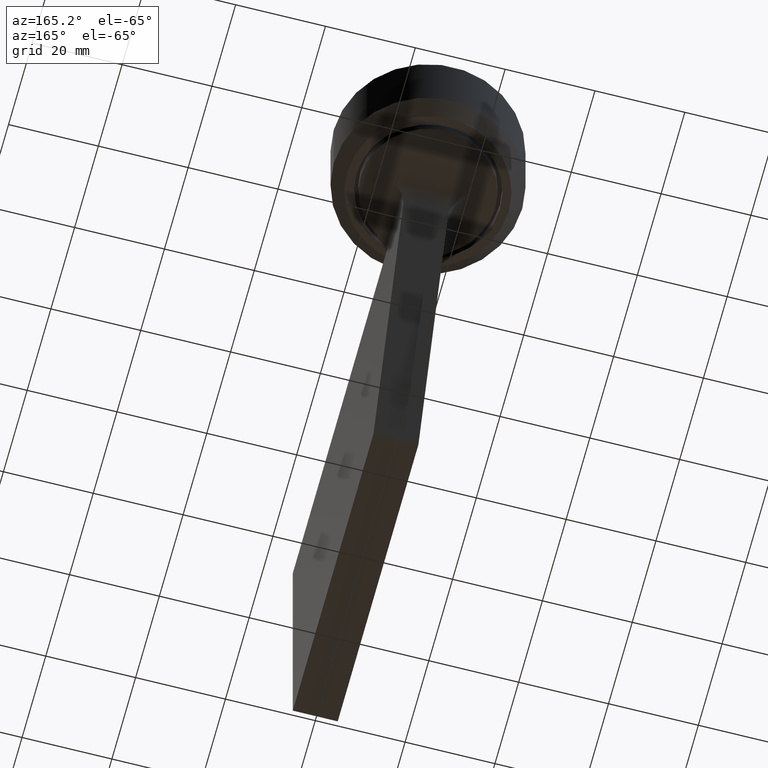
[diagram: clean part render]
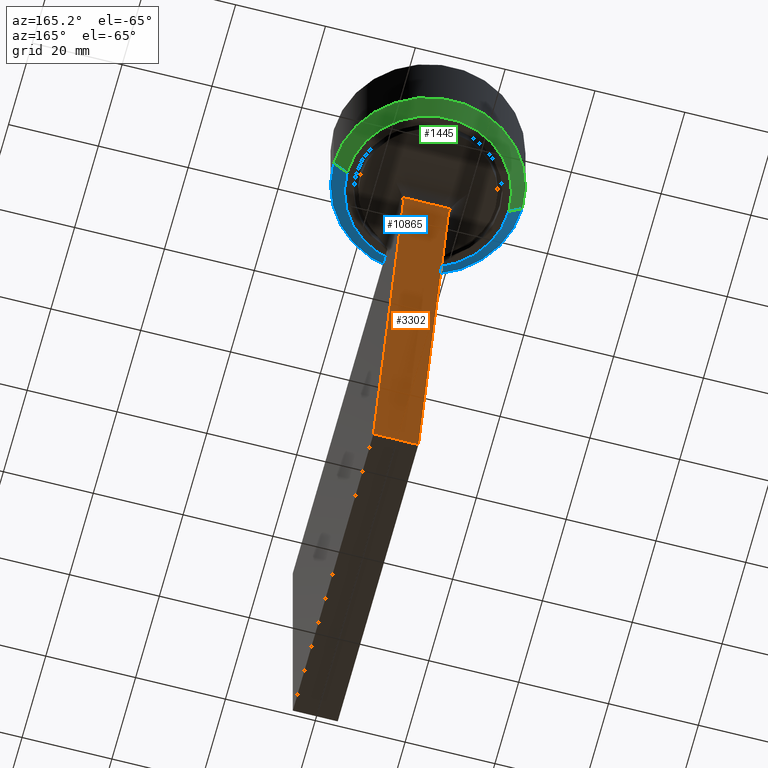
[diagram: same view with three faces highlighted in distinct colors, each labeled with its STEP entity id]
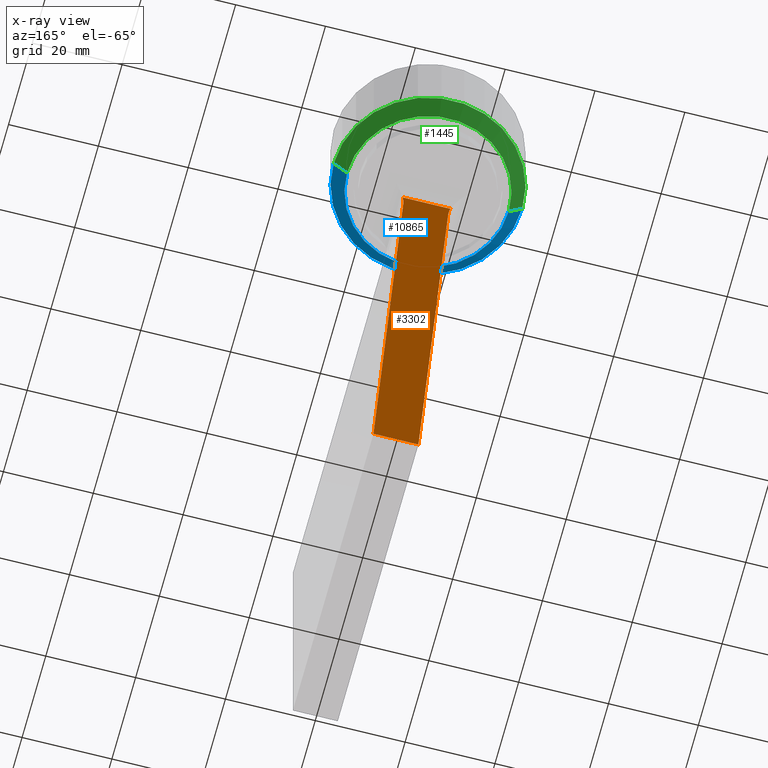
[diagram: x-ray of the same camera — body ghosted, the three highlighted faces saturated]
A machine part, auxiliary view with three faces highlighted in distinct colors.
The next image is the same camera in x-ray (body ghosted, the three faces saturated) — at least one of them is partly hidden behind the body in this view.
Their STEP definitions:

[orange] entity #3302 — the highlighted planar face has unit normal (-0, -0.933, 0.3599).
#59 =( BOUNDED_CURVE ( )  B_SPLINE_CURVE ( 3, ( #6565, #6530, #9326, #6606 ),
 .UNSPECIFIED., .F., .F. ) 
 B_SPLINE_CURVE_WITH_KNOTS ( ( 4, 4 ),
 ( 1.570796326794896558, 1.938927098120058368 ),
 .UNSPECIFIED. ) 
 CURVE ( )  GEOMETRIC_REPRESENTATION_ITEM ( )  RATIONAL_B_SPLINE_CURVE ( ( 1.000000000000000000, 0.9887384935822896015, 0.9887384935822896015, 1.000000000000000000 ) ) 
 REPRESENTATION_ITEM ( '' )  );
#231 = DIRECTION ( 'NONE',  ( -0.000000000000000000, -0.3598720682262373516, 0.9330016583643194750 ) ) ;
#244 = EDGE_CURVE ( 'NONE', #3418, #4141, #3768, .T. ) ;
#341 = DIRECTION ( 'NONE',  ( 0.000000000000000000, -0.9330016583643194750, -0.3598720682262373516 ) ) ;
#781 = CARTESIAN_POINT ( 'NONE',  ( -5.000000000000000000, 93.07142857142856940, -65.00000000000000000 ) ) ;
#967 = AXIS2_PLACEMENT_3D ( 'NONE', #9725, #341, #10846 ) ;
#1815 = CARTESIAN_POINT ( 'NONE',  ( -5.112935729164912679, 93.54341158113710719, -66.22365965479991701 ) ) ;
#1956 = LINE ( 'NONE', #6061, #4452 ) ;
#2210 = ORIENTED_EDGE ( 'NONE', *, *, #244, .F. ) ;
#2227 = PLANE ( 'NONE',  #967 ) ;
#2521 = EDGE_CURVE ( 'NONE', #5922, #7923, #59, .T. ) ;
#2676 = CARTESIAN_POINT ( 'NONE',  ( -5.334991708178399072, 93.76546756015059714, -66.79936034113117671 ) ) ;
#2700 = LINE ( 'NONE', #9333, #6069 ) ;
#2807 = CARTESIAN_POINT ( 'NONE',  ( -5.000000000000000000, 93.76546756015059714, -66.79936034113117671 ) ) ;
#2812 = ORIENTED_EDGE ( 'NONE', *, *, #2521, .T. ) ;
#3046 = CARTESIAN_POINT ( 'NONE',  ( 5.334991708178399072, 93.76546756015059714, -66.79936034113117671 ) ) ;
#3287 = CARTESIAN_POINT ( 'NONE',  ( 5.000000000000000000, 68.00000000000000000, 1.665519646840399908E-14 ) ) ;
#3302 = ADVANCED_FACE ( 'NONE', ( #8713 ), #2227, .F. ) ;
#3358 = ORIENTED_EDGE ( 'NONE', *, *, #8764, .T. ) ;
#3418 = VERTEX_POINT ( 'NONE', #7806 ) ;
#3444 = LINE ( 'NONE', #2807, #10187 ) ;
#3479 = EDGE_CURVE ( 'NONE', #8103, #4141, #1956, .T. ) ;
#3696 = CARTESIAN_POINT ( 'NONE',  ( -4.999999999999999112, 93.30943026952070340, -65.61704143949813783 ) ) ;
#3768 = LINE ( 'NONE', #3287, #7554 ) ;
#4141 = VERTEX_POINT ( 'NONE', #5997 ) ;
#4214 = ORIENTED_EDGE ( 'NONE', *, *, #10007, .F. ) ;
#4225 = DIRECTION ( 'NONE',  ( -1.000000000000000000, -0.000000000000000000, -0.000000000000000000 ) ) ;
#4257 = EDGE_CURVE ( 'NONE', #11606, #8103, #5178, .T. ) ;
#4452 = VECTOR ( 'NONE', #7154, 1000.000000000000114 ) ;
#5178 =( BOUNDED_CURVE ( )  B_SPLINE_CURVE ( 3, ( #2676, #1815, #3696, #781 ),
 .UNSPECIFIED., .F., .F. ) 
 B_SPLINE_CURVE_WITH_KNOTS ( ( 4, 4 ),
 ( 1.202665555469734748, 1.570796326794896558 ),
 .UNSPECIFIED. ) 
 CURVE ( )  GEOMETRIC_REPRESENTATION_ITEM ( )  RATIONAL_B_SPLINE_CURVE ( ( 1.000000000000000000, 0.9887384935822896015, 0.9887384935822896015, 1.000000000000000000 ) ) 
 REPRESENTATION_ITEM ( '' )  );
#5922 = VERTEX_POINT ( 'NONE', #7915 ) ;
#5997 = CARTESIAN_POINT ( 'NONE',  ( -5.000000000000000000, 68.00000000000000000, 1.665519646840399908E-14 ) ) ;
#6061 = CARTESIAN_POINT ( 'NONE',  ( -5.000000000000000000, 68.00000000000000000, 1.665519646840399908E-14 ) ) ;
#6069 = VECTOR ( 'NONE', #231, 1000.000000000000114 ) ;
#6530 = CARTESIAN_POINT ( 'NONE',  ( 4.999999999999999112, 93.30943026952070340, -65.61704143949813783 ) ) ;
#6565 = CARTESIAN_POINT ( 'NONE',  ( 5.000000000000000000, 93.07142857142856940, -65.00000000000000000 ) ) ;
#6606 = CARTESIAN_POINT ( 'NONE',  ( 5.334991708178399072, 93.76546756015059714, -66.79936034113117671 ) ) ;
#6935 = CARTESIAN_POINT ( 'NONE',  ( -5.334991708178399072, 93.76546756015059714, -66.79936034113117671 ) ) ;
#7154 = DIRECTION ( 'NONE',  ( -0.000000000000000000, -0.3598720682262373516, 0.9330016583643194750 ) ) ;
#7554 = VECTOR ( 'NONE', #4225, 1000.000000000000000 ) ;
#7806 = CARTESIAN_POINT ( 'NONE',  ( 5.000000000000000000, 68.00000000000000000, 1.665519646840399908E-14 ) ) ;
#7915 = CARTESIAN_POINT ( 'NONE',  ( 5.000000000000000000, 93.07142857142856940, -65.00000000000000000 ) ) ;
#7923 = VERTEX_POINT ( 'NONE', #3046 ) ;
#8103 = VERTEX_POINT ( 'NONE', #8227 ) ;
#8227 = CARTESIAN_POINT ( 'NONE',  ( -5.000000000000000000, 93.07142857142856940, -65.00000000000000000 ) ) ;
#8713 = FACE_OUTER_BOUND ( 'NONE', #10757, .T. ) ;
#8764 = EDGE_CURVE ( 'NONE', #7923, #11606, #3444, .T. ) ;
#9326 = CARTESIAN_POINT ( 'NONE',  ( 5.112935729164911791, 93.54341158113710719, -66.22365965479991701 ) ) ;
#9333 = CARTESIAN_POINT ( 'NONE',  ( 5.000000000000000000, 68.00000000000000000, 1.665519646840399908E-14 ) ) ;
#9373 = DIRECTION ( 'NONE',  ( -1.000000000000000000, 0.000000000000000000, 0.000000000000000000 ) ) ;
#9725 = CARTESIAN_POINT ( 'NONE',  ( 5.000000000000000000, 68.00000000000000000, 1.665519646840399908E-14 ) ) ;
#9791 = ORIENTED_EDGE ( 'NONE', *, *, #4257, .T. ) ;
#10007 = EDGE_CURVE ( 'NONE', #5922, #3418, #2700, .T. ) ;
#10187 = VECTOR ( 'NONE', #9373, 1000.000000000000000 ) ;
#10327 = ORIENTED_EDGE ( 'NONE', *, *, #3479, .T. ) ;
#10757 = EDGE_LOOP ( 'NONE', ( #4214, #2812, #3358, #9791, #10327, #2210 ) ) ;
#10846 = DIRECTION ( 'NONE',  ( 0.000000000000000000, 0.3598720682262373516, -0.9330016583643194750 ) ) ;
#11606 = VERTEX_POINT ( 'NONE', #6935 ) ;

[blue] entity #10865 — the highlighted conical surface has half-angle 45 deg.
#696 = CARTESIAN_POINT ( 'NONE',  ( 17.99999999999998224, 0.000000000000000000, -28.00000000000000355 ) ) ;
#889 = EDGE_CURVE ( 'NONE', #4441, #8401, #2159, .T. ) ;
#993 = AXIS2_PLACEMENT_3D ( 'NONE', #11227, #12163, #1873 ) ;
#1487 = EDGE_CURVE ( 'NONE', #7000, #4441, #11541, .T. ) ;
#1873 = DIRECTION ( 'NONE',  ( 1.000000000000000000, 0.000000000000000000, 0.000000000000000000 ) ) ;
#1908 = EDGE_LOOP ( 'NONE', ( #7804, #3675, #8834, #11953 ) ) ;
#2159 = CIRCLE ( 'NONE', #3865, 21.00000000000000000 ) ;
#2243 = CONICAL_SURFACE ( 'NONE', #993, 21.00000000000000000, 0.7853981633974506105 ) ;
#2326 = DIRECTION ( 'NONE',  ( -0.7071067811865492381, 8.659560562354953812E-17, 0.7071067811865457964 ) ) ;
#3615 = EDGE_CURVE ( 'NONE', #9292, #7000, #6224, .T. ) ;
#3675 = ORIENTED_EDGE ( 'NONE', *, *, #3615, .F. ) ;
#3865 = AXIS2_PLACEMENT_3D ( 'NONE', #7771, #7814, #10518 ) ;
#3960 = CARTESIAN_POINT ( 'NONE',  ( 0.000000000000000000, 0.000000000000000000, -28.00000000000000355 ) ) ;
#4441 = VERTEX_POINT ( 'NONE', #11408 ) ;
#4915 = LINE ( 'NONE', #10774, #5511 ) ;
#5073 = DIRECTION ( 'NONE',  ( 0.7071067811865492381, 0.000000000000000000, 0.7071067811865457964 ) ) ;
#5511 = VECTOR ( 'NONE', #5073, 1000.000000000000000 ) ;
#6224 = CIRCLE ( 'NONE', #10170, 17.99999999999998224 ) ;
#7000 = VERTEX_POINT ( 'NONE', #10503 ) ;
#7771 = CARTESIAN_POINT ( 'NONE',  ( 0.000000000000000000, 0.000000000000000000, -24.99999999999999645 ) ) ;
#7804 = ORIENTED_EDGE ( 'NONE', *, *, #1487, .F. ) ;
#7814 = DIRECTION ( 'NONE',  ( -0.000000000000000000, -0.000000000000000000, 1.000000000000000000 ) ) ;
#8401 = VERTEX_POINT ( 'NONE', #8924 ) ;
#8832 = CARTESIAN_POINT ( 'NONE',  ( -21.00000000000000000, 2.571758278209441267E-15, -24.99999999999999645 ) ) ;
#8834 = ORIENTED_EDGE ( 'NONE', *, *, #8937, .T. ) ;
#8886 = VECTOR ( 'NONE', #2326, 1000.000000000000000 ) ;
#8924 = CARTESIAN_POINT ( 'NONE',  ( 21.00000000000000000, 0.000000000000000000, -24.99999999999999645 ) ) ;
#8937 = EDGE_CURVE ( 'NONE', #9292, #8401, #4915, .T. ) ;
#9292 = VERTEX_POINT ( 'NONE', #696 ) ;
#10170 = AXIS2_PLACEMENT_3D ( 'NONE', #3960, #11440, #10493 ) ;
#10493 = DIRECTION ( 'NONE',  ( 1.000000000000000000, 0.000000000000000000, 0.000000000000000000 ) ) ;
#10503 = CARTESIAN_POINT ( 'NONE',  ( -17.99999999999998224, 2.388061258337337361E-15, -28.00000000000000355 ) ) ;
#10518 = DIRECTION ( 'NONE',  ( 1.000000000000000000, 0.000000000000000000, 0.000000000000000000 ) ) ;
#10774 = CARTESIAN_POINT ( 'NONE',  ( 21.00000000000000000, 0.000000000000000000, -24.99999999999999645 ) ) ;
#10865 = ADVANCED_FACE ( 'NONE', ( #11937 ), #2243, .T. ) ;
#11227 = CARTESIAN_POINT ( 'NONE',  ( 0.000000000000000000, 0.000000000000000000, -24.99999999999999645 ) ) ;
#11408 = CARTESIAN_POINT ( 'NONE',  ( -21.00000000000000000, 2.571758278209441661E-15, -24.99999999999999645 ) ) ;
#11440 = DIRECTION ( 'NONE',  ( 0.000000000000000000, 0.000000000000000000, -1.000000000000000000 ) ) ;
#11541 = LINE ( 'NONE', #8832, #8886 ) ;
#11937 = FACE_OUTER_BOUND ( 'NONE', #1908, .T. ) ;
#11953 = ORIENTED_EDGE ( 'NONE', *, *, #889, .F. ) ;
#12163 = DIRECTION ( 'NONE',  ( -0.000000000000000000, -0.000000000000000000, 1.000000000000000000 ) ) ;

[green] entity #1445 — the highlighted conical surface has half-angle 45 deg.
#89 = EDGE_CURVE ( 'NONE', #7000, #9292, #8592, .T. ) ;
#132 = ORIENTED_EDGE ( 'NONE', *, *, #8933, .F. ) ;
#400 = DIRECTION ( 'NONE',  ( -0.000000000000000000, -0.000000000000000000, 1.000000000000000000 ) ) ;
#696 = CARTESIAN_POINT ( 'NONE',  ( 17.99999999999998224, 0.000000000000000000, -28.00000000000000355 ) ) ;
#1240 = CARTESIAN_POINT ( 'NONE',  ( 0.000000000000000000, 0.000000000000000000, -28.00000000000000355 ) ) ;
#1335 = ORIENTED_EDGE ( 'NONE', *, *, #89, .F. ) ;
#1355 = DIRECTION ( 'NONE',  ( 0.000000000000000000, 0.000000000000000000, -1.000000000000000000 ) ) ;
#1378 = CARTESIAN_POINT ( 'NONE',  ( 0.000000000000000000, 0.000000000000000000, -24.99999999999999645 ) ) ;
#1445 = ADVANCED_FACE ( 'NONE', ( #1709 ), #9630, .T. ) ;
#1487 = EDGE_CURVE ( 'NONE', #7000, #4441, #11541, .T. ) ;
#1709 = FACE_OUTER_BOUND ( 'NONE', #3888, .T. ) ;
#2326 = DIRECTION ( 'NONE',  ( -0.7071067811865492381, 8.659560562354953812E-17, 0.7071067811865457964 ) ) ;
#2401 = CARTESIAN_POINT ( 'NONE',  ( 0.000000000000000000, 0.000000000000000000, -24.99999999999999645 ) ) ;
#3733 = ORIENTED_EDGE ( 'NONE', *, *, #1487, .T. ) ;
#3888 = EDGE_LOOP ( 'NONE', ( #1335, #3733, #132, #11889 ) ) ;
#3905 = AXIS2_PLACEMENT_3D ( 'NONE', #2401, #400, #9899 ) ;
#4441 = VERTEX_POINT ( 'NONE', #11408 ) ;
#4915 = LINE ( 'NONE', #10774, #5511 ) ;
#5060 = AXIS2_PLACEMENT_3D ( 'NONE', #1378, #7916, #11647 ) ;
#5073 = DIRECTION ( 'NONE',  ( 0.7071067811865492381, 0.000000000000000000, 0.7071067811865457964 ) ) ;
#5511 = VECTOR ( 'NONE', #5073, 1000.000000000000000 ) ;
#7000 = VERTEX_POINT ( 'NONE', #10503 ) ;
#7916 = DIRECTION ( 'NONE',  ( -0.000000000000000000, -0.000000000000000000, 1.000000000000000000 ) ) ;
#8401 = VERTEX_POINT ( 'NONE', #8924 ) ;
#8592 = CIRCLE ( 'NONE', #9530, 17.99999999999998224 ) ;
#8832 = CARTESIAN_POINT ( 'NONE',  ( -21.00000000000000000, 2.571758278209441267E-15, -24.99999999999999645 ) ) ;
#8886 = VECTOR ( 'NONE', #2326, 1000.000000000000000 ) ;
#8924 = CARTESIAN_POINT ( 'NONE',  ( 21.00000000000000000, 0.000000000000000000, -24.99999999999999645 ) ) ;
#8933 = EDGE_CURVE ( 'NONE', #8401, #4441, #11220, .T. ) ;
#8937 = EDGE_CURVE ( 'NONE', #9292, #8401, #4915, .T. ) ;
#9292 = VERTEX_POINT ( 'NONE', #696 ) ;
#9530 = AXIS2_PLACEMENT_3D ( 'NONE', #1240, #1355, #11621 ) ;
#9630 = CONICAL_SURFACE ( 'NONE', #5060, 21.00000000000000000, 0.7853981633974506105 ) ;
#9899 = DIRECTION ( 'NONE',  ( 1.000000000000000000, 0.000000000000000000, 0.000000000000000000 ) ) ;
#10503 = CARTESIAN_POINT ( 'NONE',  ( -17.99999999999998224, 2.388061258337337361E-15, -28.00000000000000355 ) ) ;
#10774 = CARTESIAN_POINT ( 'NONE',  ( 21.00000000000000000, 0.000000000000000000, -24.99999999999999645 ) ) ;
#11220 = CIRCLE ( 'NONE', #3905, 21.00000000000000000 ) ;
#11408 = CARTESIAN_POINT ( 'NONE',  ( -21.00000000000000000, 2.571758278209441661E-15, -24.99999999999999645 ) ) ;
#11541 = LINE ( 'NONE', #8832, #8886 ) ;
#11621 = DIRECTION ( 'NONE',  ( 1.000000000000000000, 0.000000000000000000, 0.000000000000000000 ) ) ;
#11647 = DIRECTION ( 'NONE',  ( 1.000000000000000000, 0.000000000000000000, 0.000000000000000000 ) ) ;
#11889 = ORIENTED_EDGE ( 'NONE', *, *, #8937, .F. ) ;